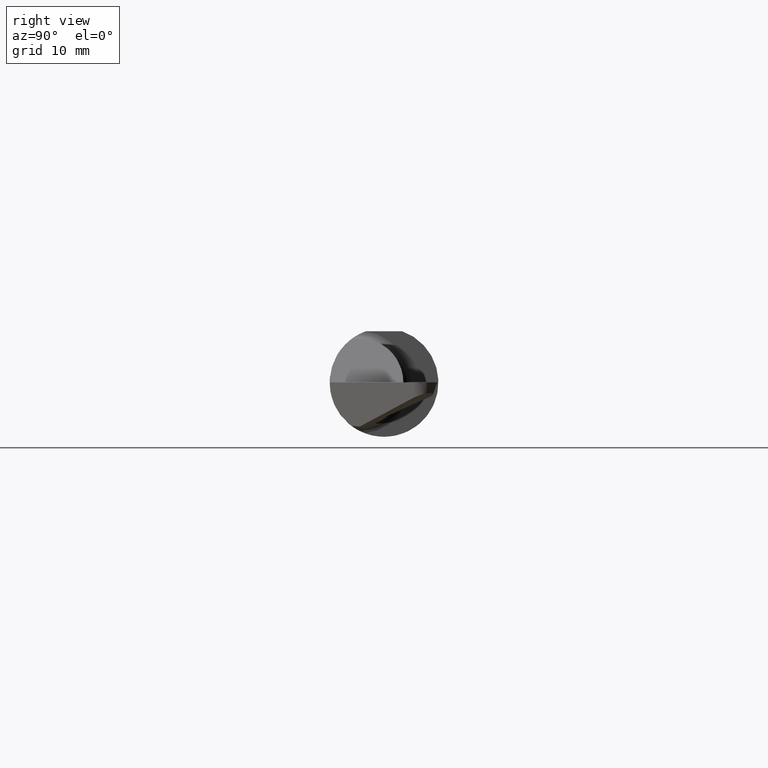
[diagram: clean part render]
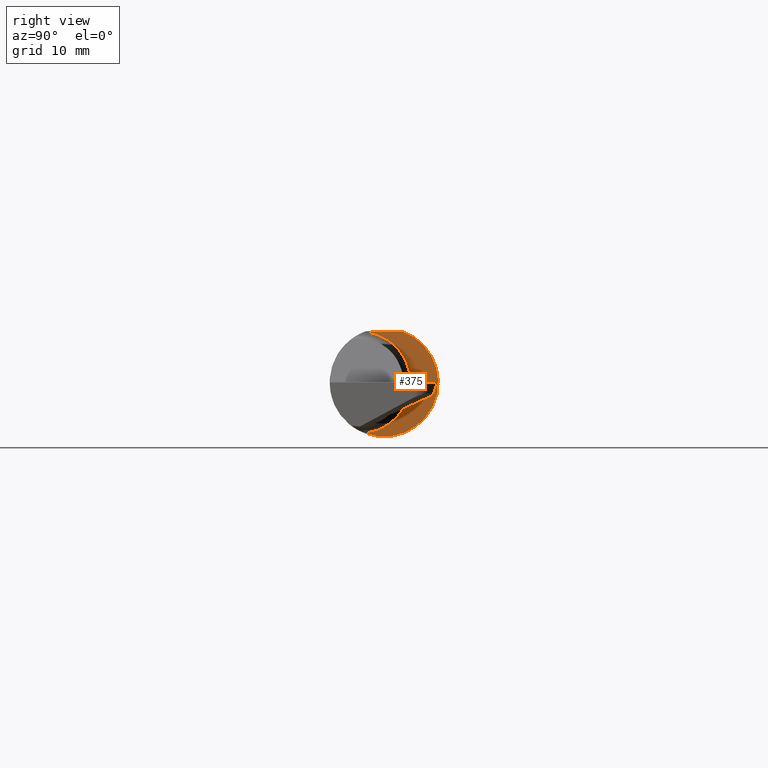
[diagram: same view with one face highlighted and labeled with its STEP entity id]
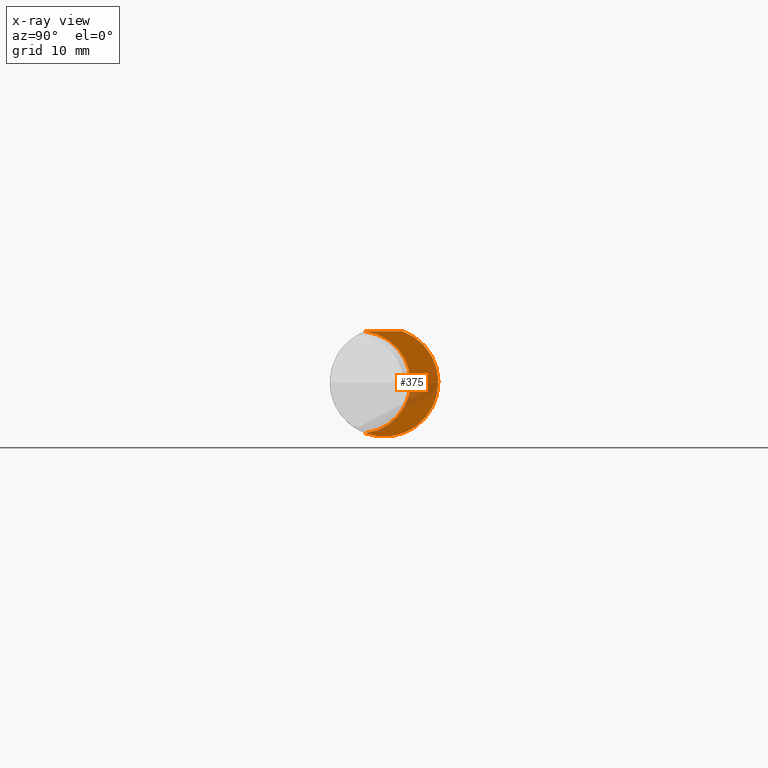
[diagram: x-ray of the same camera — body ghosted, the highlighted face saturated]
A machine part, right view. The second image highlights one B-rep face of the part: STEP entity #375.
The next image is the same camera in x-ray: the body ghosted, the highlighted face saturated — about 16% of this face is hidden behind the body in this view.
In plain terms, the highlighted planar face has unit normal (1, 0, 0).
Its self-contained STEP definition (entity closure, byte-faithful):
#2 = AXIS2_PLACEMENT_3D ( 'NONE', #193, #130, #624 ) ;
#14 = CIRCLE ( 'NONE', #332, 0.1769999999999995188 ) ;
#130 = DIRECTION ( 'NONE',  ( 1.000000000000000000, 0.000000000000000000, 0.000000000000000000 ) ) ;
#134 = DIRECTION ( 'NONE',  ( 1.000000000000000000, 0.000000000000000000, 0.000000000000000000 ) ) ;
#136 = ORIENTED_EDGE ( 'NONE', *, *, #750, .T. ) ;
#140 = EDGE_CURVE ( 'NONE', #806, #769, #14, .T. ) ;
#188 = CARTESIAN_POINT ( 'NONE',  ( 1.418999999999999817, -0.06325108694718373226, 0.1763499999999999512 ) ) ;
#193 = CARTESIAN_POINT ( 'NONE',  ( 1.418999999999999817, 0.000000000000000000, 0.000000000000000000 ) ) ;
#232 = DIRECTION ( 'NONE',  ( 0.000000000000000000, 0.000000000000000000, -1.000000000000000000 ) ) ;
#260 = CARTESIAN_POINT ( 'NONE',  ( 1.418999999999999817, 0.06325108694718227509, 0.1763499999999999512 ) ) ;
#292 = VECTOR ( 'NONE', #531, 39.37007874015748143 ) ;
#298 = CARTESIAN_POINT ( 'NONE',  ( 1.418999999999999817, -0.06476652021089729372, -0.1757990908957478837 ) ) ;
#320 = AXIS2_PLACEMENT_3D ( 'NONE', #493, #134, #756 ) ;
#332 = AXIS2_PLACEMENT_3D ( 'NONE', #733, #359, #365 ) ;
#343 = CARTESIAN_POINT ( 'NONE',  ( 1.418999999999999817, 0.000000000000000000, 0.000000000000000000 ) ) ;
#354 = CIRCLE ( 'NONE', #2, 0.1873499999999999888 ) ;
#359 = DIRECTION ( 'NONE',  ( -1.000000000000000000, -0.000000000000000000, -0.000000000000000000 ) ) ;
#365 = DIRECTION ( 'NONE',  ( 0.000000000000000000, 0.000000000000000000, 1.000000000000000000 ) ) ;
#375 = ADVANCED_FACE ( 'NONE', ( #512 ), #771, .T. ) ;
#424 = VERTEX_POINT ( 'NONE', #188 ) ;
#433 = ORIENTED_EDGE ( 'NONE', *, *, #140, .T. ) ;
#434 = AXIS2_PLACEMENT_3D ( 'NONE', #343, #594, #232 ) ;
#493 = CARTESIAN_POINT ( 'NONE',  ( 1.418999999999999817, 0.09164999999999952351, 0.000000000000000000 ) ) ;
#512 = FACE_OUTER_BOUND ( 'NONE', #742, .T. ) ;
#531 = DIRECTION ( 'NONE',  ( 0.000000000000000000, -1.000000000000000000, 0.000000000000000000 ) ) ;
#535 = CARTESIAN_POINT ( 'NONE',  ( 1.418999999999999817, -0.06476652021089729372, 0.1757990908957478837 ) ) ;
#577 = VERTEX_POINT ( 'NONE', #260 ) ;
#594 = DIRECTION ( 'NONE',  ( 1.000000000000000000, 0.000000000000000000, 0.000000000000000000 ) ) ;
#601 = EDGE_CURVE ( 'NONE', #424, #806, #354, .T. ) ;
#624 = DIRECTION ( 'NONE',  ( 0.000000000000000000, 0.000000000000000000, -1.000000000000000000 ) ) ;
#671 = CARTESIAN_POINT ( 'NONE',  ( 1.418999999999999817, 0.1000000000000000056, 0.1763499999999999512 ) ) ;
#678 = LINE ( 'NONE', #671, #292 ) ;
#681 = ORIENTED_EDGE ( 'NONE', *, *, #601, .T. ) ;
#733 = CARTESIAN_POINT ( 'NONE',  ( 1.418999999999999817, -0.08534999999999998144, 0.000000000000000000 ) ) ;
#742 = EDGE_LOOP ( 'NONE', ( #136, #749, #681, #433 ) ) ;
#749 = ORIENTED_EDGE ( 'NONE', *, *, #804, .T. ) ;
#750 = EDGE_CURVE ( 'NONE', #769, #577, #797, .T. ) ;
#756 = DIRECTION ( 'NONE',  ( 0.000000000000000000, 0.000000000000000000, -1.000000000000000000 ) ) ;
#769 = VERTEX_POINT ( 'NONE', #298 ) ;
#771 = PLANE ( 'NONE',  #320 ) ;
#797 = CIRCLE ( 'NONE', #434, 0.1873499999999999888 ) ;
#804 = EDGE_CURVE ( 'NONE', #577, #424, #678, .T. ) ;
#806 = VERTEX_POINT ( 'NONE', #535 ) ;